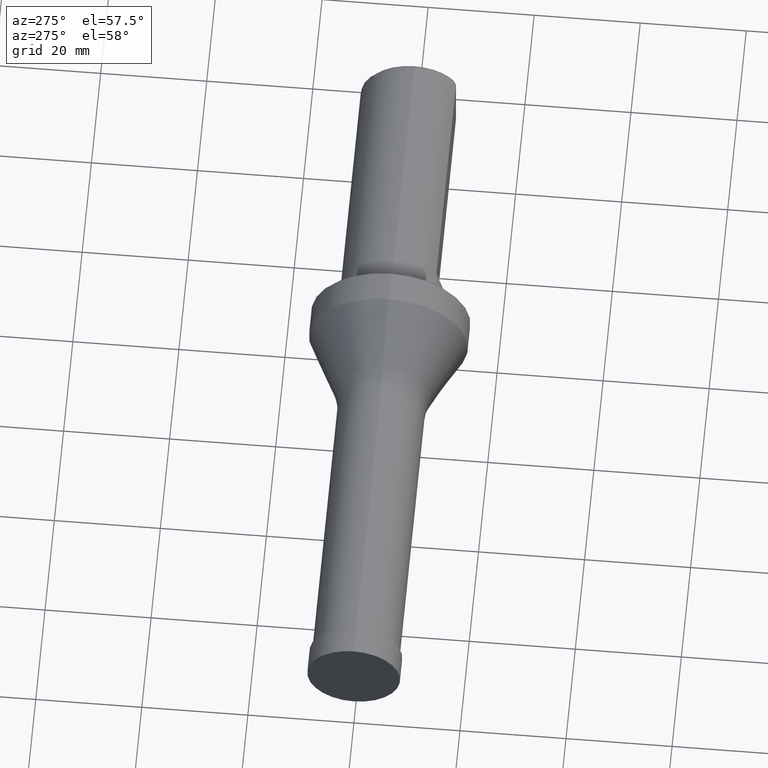
[diagram: clean part render]
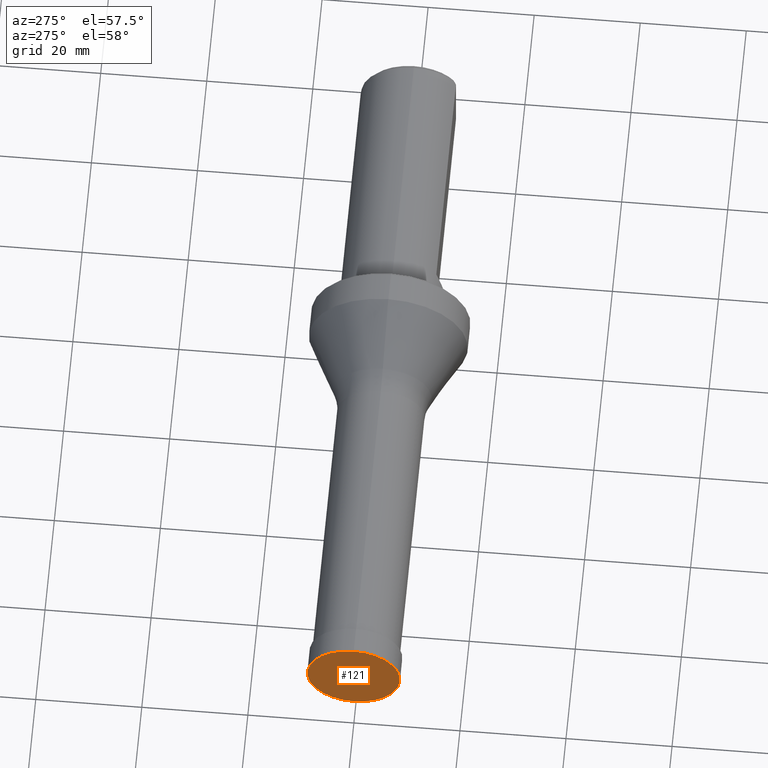
[diagram: same view with one face highlighted and labeled with its STEP entity id]
A machine part, auxiliary view. The second image highlights one B-rep face of the part: STEP entity #121.
In plain terms, the highlighted planar face has unit normal (1, 0, 0).
Its self-contained STEP definition (entity closure, byte-faithful):
#49 = DIRECTION ( 'NONE',  ( 0.0000000000000000000, 0.0000000000000000000, 1.000000000000000000 ) ) ;
#56 = DIRECTION ( 'NONE',  ( -1.000000000000000000, 0.0000000000000000000, 0.0000000000000000000 ) ) ;
#73 = AXIS2_PLACEMENT_3D ( 'NONE', #194, #56, #49 ) ;
#121 = ADVANCED_FACE ( 'NONE', ( #491 ), #972, .F. ) ;
#140 = DIRECTION ( 'NONE',  ( 0.0000000000000000000, 0.0000000000000000000, 1.000000000000000000 ) ) ;
#187 = ORIENTED_EDGE ( 'NONE', *, *, #961, .T. ) ;
#194 = CARTESIAN_POINT ( 'NONE',  ( -0.5000000000000002200, 0.0000000000000000000, 0.0000000000000000000 ) ) ;
#283 = CARTESIAN_POINT ( 'NONE',  ( -0.5000000000000002200, 0.0000000000000000000, 8.750000000000001800 ) ) ;
#299 = CARTESIAN_POINT ( 'NONE',  ( -0.5000000000000002200, 1.071565949253934300E-015, -8.750000000000001800 ) ) ;
#358 = CARTESIAN_POINT ( 'NONE',  ( -0.5000000000000002200, 2.500000000000000000, 0.0000000000000000000 ) ) ;
#491 = FACE_OUTER_BOUND ( 'NONE', #1194, .T. ) ;
#526 = DIRECTION ( 'NONE',  ( -1.000000000000000000, 0.0000000000000000000, 0.0000000000000000000 ) ) ;
#604 = AXIS2_PLACEMENT_3D ( 'NONE', #1020, #526, #140 ) ;
#794 = AXIS2_PLACEMENT_3D ( 'NONE', #358, #1149, #927 ) ;
#864 = EDGE_CURVE ( 'NONE', #891, #964, #979, .T. ) ;
#891 = VERTEX_POINT ( 'NONE', #299 ) ;
#927 = DIRECTION ( 'NONE',  ( 0.0000000000000000000, 0.0000000000000000000, -1.000000000000000000 ) ) ;
#961 = EDGE_CURVE ( 'NONE', #964, #891, #990, .T. ) ;
#964 = VERTEX_POINT ( 'NONE', #283 ) ;
#972 = PLANE ( 'NONE',  #794 ) ;
#979 = CIRCLE ( 'NONE', #604, 8.750000000000001800 ) ;
#990 = CIRCLE ( 'NONE', #73, 8.750000000000001800 ) ;
#1020 = CARTESIAN_POINT ( 'NONE',  ( -0.5000000000000002200, 0.0000000000000000000, 0.0000000000000000000 ) ) ;
#1038 = ORIENTED_EDGE ( 'NONE', *, *, #864, .T. ) ;
#1149 = DIRECTION ( 'NONE',  ( 1.000000000000000000, 0.0000000000000000000, 0.0000000000000000000 ) ) ;
#1194 = EDGE_LOOP ( 'NONE', ( #187, #1038 ) ) ;